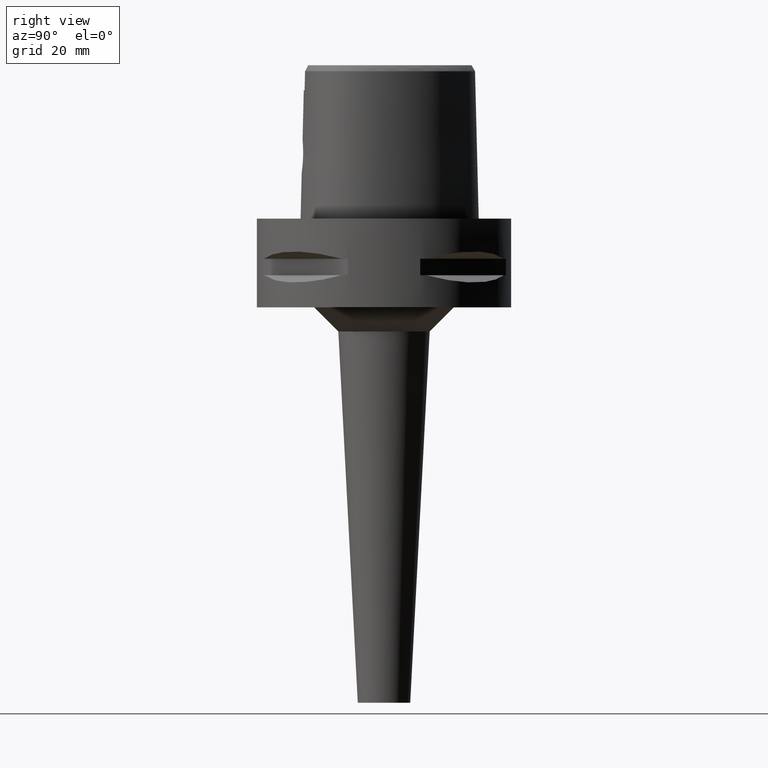
[diagram: clean part render]
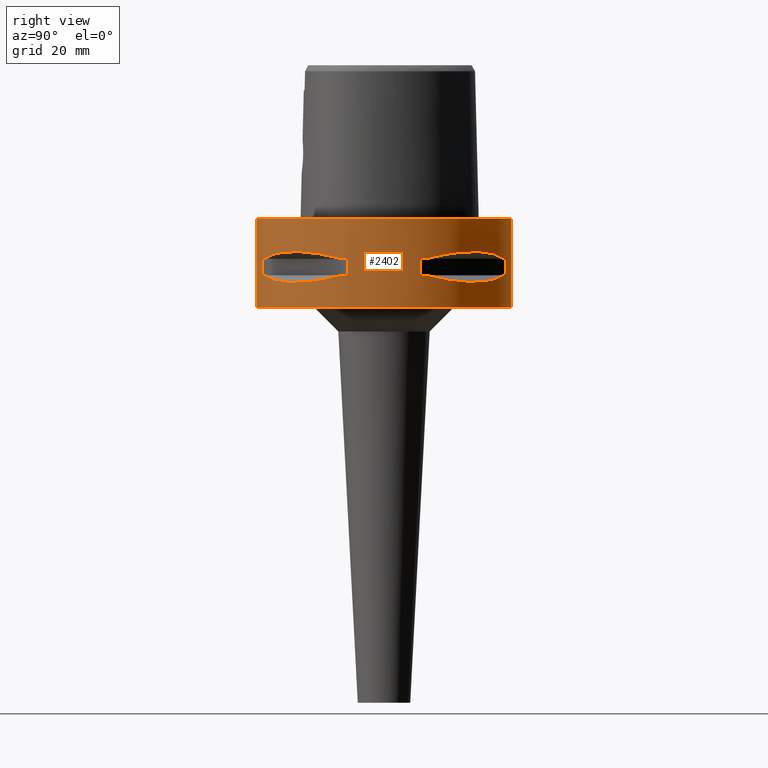
[diagram: same view with one face highlighted and labeled with its STEP entity id]
A machine part, right view. The second image highlights one B-rep face of the part: STEP entity #2402.
In plain terms, the highlighted cylindrical surface (partial cylindrical patch) has radius 31.5 mm, axis along (0, 0, -1).
Its self-contained STEP definition (entity closure, byte-faithful):
#292=CARTESIAN_POINT('',(0.E0,1.298125607096E-14,0.E0));
#293=DIRECTION('',(0.E0,0.E0,-1.E0));
#294=DIRECTION('',(0.E0,1.E0,0.E0));
#295=AXIS2_PLACEMENT_3D('',#292,#293,#294);
#384=DIRECTION('',(0.E0,0.E0,-1.E0));
#385=VECTOR('',#384,2.2E1);
#386=CARTESIAN_POINT('',(0.E0,-3.15E1,0.E0));
#387=LINE('',#386,#385);
#463=DIRECTION('',(0.E0,0.E0,-1.E0));
#464=VECTOR('',#463,2.2E1);
#465=CARTESIAN_POINT('',(0.E0,3.15E1,0.E0));
#466=LINE('',#465,#464);
#470=CARTESIAN_POINT('',(2.971690375018E1,-1.044775724750E1,-9.950000000001E0));
#471=CARTESIAN_POINT('',(2.888151197365E1,-1.282388988809E1,-9.320995176200E0));
#472=CARTESIAN_POINT('',(2.674739463903E1,-1.711282138769E1,-8.441295977077E0));
#473=CARTESIAN_POINT('',(2.244574140438E1,-2.244574140438E1,-8.020283076297E0));
#474=CARTESIAN_POINT('',(1.711282138769E1,-2.674739463903E1,-8.441295977077E0));
#475=CARTESIAN_POINT('',(1.282388988809E1,-2.888151197365E1,-9.320995176200E0));
#476=CARTESIAN_POINT('',(1.044775724750E1,-2.971690375018E1,-9.950000000001E0));
#481=DIRECTION('',(0.E0,0.E0,-1.E0));
#482=VECTOR('',#481,4.1E0);
#483=CARTESIAN_POINT('',(8.981198972017E0,-3.019251670572E1,-9.95E0));
#484=LINE('',#483,#482);
#488=CARTESIAN_POINT('',(1.044775724750E1,-2.971690375018E1,-1.405E1));
#489=CARTESIAN_POINT('',(1.282388988809E1,-2.888151197365E1,-1.467900482380E1));
#490=CARTESIAN_POINT('',(1.711282138769E1,-2.674739463903E1,-1.555870402293E1));
#491=CARTESIAN_POINT('',(2.244574140438E1,-2.244574140438E1,-1.597971692371E1));
#492=CARTESIAN_POINT('',(2.674739463903E1,-1.711282138769E1,-1.555870402293E1));
#493=CARTESIAN_POINT('',(2.888151197365E1,-1.282388988809E1,-1.467900482380E1));
#494=CARTESIAN_POINT('',(2.971690375018E1,-1.044775724750E1,-1.405E1));
#499=DIRECTION('',(0.E0,0.E0,1.E0));
#500=VECTOR('',#499,4.1E0);
#501=CARTESIAN_POINT('',(3.019251670572E1,-8.981198972017E0,-1.405E1));
#502=LINE('',#501,#500);
#506=CARTESIAN_POINT('',(1.044775724750E1,2.971690375018E1,-9.950000000001E0));
#507=CARTESIAN_POINT('',(1.282388988809E1,2.888151197365E1,-9.320995176200E0));
#508=CARTESIAN_POINT('',(1.711282138769E1,2.674739463903E1,-8.441295977077E0));
#509=CARTESIAN_POINT('',(2.244574140438E1,2.244574140438E1,-8.020283076297E0));
#510=CARTESIAN_POINT('',(2.674739463903E1,1.711282138769E1,-8.441295977077E0));
#511=CARTESIAN_POINT('',(2.888151197365E1,1.282388988809E1,-9.320995176200E0));
#512=CARTESIAN_POINT('',(2.971690375018E1,1.044775724750E1,-9.950000000001E0));
#517=DIRECTION('',(0.E0,0.E0,-1.E0));
#518=VECTOR('',#517,4.1E0);
#519=CARTESIAN_POINT('',(3.019251670572E1,8.981198972017E0,-9.95E0));
#520=LINE('',#519,#518);
#524=CARTESIAN_POINT('',(2.971690375018E1,1.044775724750E1,-1.405E1));
#525=CARTESIAN_POINT('',(2.888151197365E1,1.282388988809E1,-1.467900482380E1));
#526=CARTESIAN_POINT('',(2.674739463903E1,1.711282138769E1,-1.555870402293E1));
#527=CARTESIAN_POINT('',(2.244574140438E1,2.244574140438E1,-1.597971692371E1));
#528=CARTESIAN_POINT('',(1.711282138769E1,2.674739463903E1,-1.555870402293E1));
#529=CARTESIAN_POINT('',(1.282388988809E1,2.888151197365E1,-1.467900482380E1));
#530=CARTESIAN_POINT('',(1.044775724750E1,2.971690375018E1,-1.405E1));
#535=DIRECTION('',(0.E0,0.E0,1.E0));
#536=VECTOR('',#535,4.1E0);
#537=CARTESIAN_POINT('',(8.981198972017E0,3.019251670572E1,-1.405E1));
#538=LINE('',#537,#536);
#542=CARTESIAN_POINT('',(0.E0,1.298125607096E-14,-2.2E1));
#543=DIRECTION('',(0.E0,0.E0,1.E0));
#544=DIRECTION('',(0.E0,-1.E0,0.E0));
#545=AXIS2_PLACEMENT_3D('',#542,#543,#544);
#1206=CARTESIAN_POINT('',(0.E0,1.298125607096E-14,-9.95E0));
#1207=DIRECTION('',(0.E0,0.E0,1.E0));
#1208=DIRECTION('',(9.433937698469E-1,-3.316748332541E-1,0.E0));
#1209=AXIS2_PLACEMENT_3D('',#1206,#1207,#1208);
#1214=CARTESIAN_POINT('',(0.E0,1.298125607096E-14,-9.95E0));
#1215=DIRECTION('',(0.E0,0.E0,1.E0));
#1216=DIRECTION('',(2.851174276832E-1,-9.584925938323E-1,0.E0));
#1217=AXIS2_PLACEMENT_3D('',#1214,#1215,#1216);
#1236=CARTESIAN_POINT('',(0.E0,1.298125607096E-14,-1.405E1));
#1237=DIRECTION('',(0.E0,0.E0,-1.E0));
#1238=DIRECTION('',(9.584925938323E-1,-2.851174276832E-1,0.E0));
#1239=AXIS2_PLACEMENT_3D('',#1236,#1237,#1238);
#1244=CARTESIAN_POINT('',(0.E0,1.298125607096E-14,-1.405E1));
#1245=DIRECTION('',(0.E0,0.E0,-1.E0));
#1246=DIRECTION('',(3.316748332541E-1,-9.433937698469E-1,0.E0));
#1247=AXIS2_PLACEMENT_3D('',#1244,#1245,#1246);
#1266=CARTESIAN_POINT('',(0.E0,1.298125607096E-14,-9.95E0));
#1267=DIRECTION('',(0.E0,0.E0,1.E0));
#1268=DIRECTION('',(3.316748332541E-1,9.433937698469E-1,0.E0));
#1269=AXIS2_PLACEMENT_3D('',#1266,#1267,#1268);
#1274=CARTESIAN_POINT('',(0.E0,1.298125607096E-14,-9.95E0));
#1275=DIRECTION('',(0.E0,0.E0,1.E0));
#1276=DIRECTION('',(9.584925938323E-1,2.851174276832E-1,0.E0));
#1277=AXIS2_PLACEMENT_3D('',#1274,#1275,#1276);
#1296=CARTESIAN_POINT('',(0.E0,1.298125607096E-14,-1.405E1));
#1297=DIRECTION('',(0.E0,0.E0,-1.E0));
#1298=DIRECTION('',(2.851174276832E-1,9.584925938323E-1,0.E0));
#1299=AXIS2_PLACEMENT_3D('',#1296,#1297,#1298);
#1304=CARTESIAN_POINT('',(0.E0,1.298125607096E-14,-1.405E1));
#1305=DIRECTION('',(0.E0,0.E0,-1.E0));
#1306=DIRECTION('',(9.433937698469E-1,3.316748332541E-1,0.E0));
#1307=AXIS2_PLACEMENT_3D('',#1304,#1305,#1306);
#1472=CARTESIAN_POINT('',(0.E0,-3.15E1,0.E0));
#1473=CARTESIAN_POINT('',(0.E0,3.15E1,0.E0));
#1474=VERTEX_POINT('',#1472);
#1475=VERTEX_POINT('',#1473);
#1476=CARTESIAN_POINT('',(0.E0,3.15E1,-2.2E1));
#1477=VERTEX_POINT('',#1476);
#1478=CARTESIAN_POINT('',(0.E0,-3.15E1,-2.2E1));
#1479=VERTEX_POINT('',#1478);
#1506=VERTEX_POINT('',#470);
#1507=VERTEX_POINT('',#476);
#1508=CARTESIAN_POINT('',(8.981198972020E0,-3.019251670572E1,-9.95E0));
#1509=VERTEX_POINT('',#1508);
#1510=CARTESIAN_POINT('',(8.981198972017E0,-3.019251670572E1,-1.405E1));
#1511=VERTEX_POINT('',#1510);
#1512=CARTESIAN_POINT('',(1.044775724750E1,-2.971690375018E1,-1.405E1));
#1513=VERTEX_POINT('',#1512);
#1514=VERTEX_POINT('',#494);
#1515=CARTESIAN_POINT('',(3.019251670572E1,-8.981198972020E0,-1.405E1));
#1516=VERTEX_POINT('',#1515);
#1517=CARTESIAN_POINT('',(3.019251670572E1,-8.981198972017E0,-9.95E0));
#1518=VERTEX_POINT('',#1517);
#1519=VERTEX_POINT('',#506);
#1520=VERTEX_POINT('',#512);
#1521=CARTESIAN_POINT('',(3.019251670572E1,8.981198972020E0,-9.95E0));
#1522=VERTEX_POINT('',#1521);
#1523=CARTESIAN_POINT('',(3.019251670572E1,8.981198972017E0,-1.405E1));
#1524=VERTEX_POINT('',#1523);
#1525=CARTESIAN_POINT('',(2.971690375018E1,1.044775724750E1,-1.405E1));
#1526=VERTEX_POINT('',#1525);
#1527=VERTEX_POINT('',#530);
#1528=CARTESIAN_POINT('',(8.981198972020E0,3.019251670572E1,-1.405E1));
#1529=VERTEX_POINT('',#1528);
#1530=CARTESIAN_POINT('',(8.981198972017E0,3.019251670572E1,-9.95E0));
#1531=VERTEX_POINT('',#1530);
#2354=CARTESIAN_POINT('',(0.E0,1.298125607096E-14,6.E0));
#2355=DIRECTION('',(0.E0,0.E0,-1.E0));
#2356=DIRECTION('',(0.E0,-1.E0,0.E0));
#2357=AXIS2_PLACEMENT_3D('',#2354,#2355,#2356);
#2358=CYLINDRICAL_SURFACE('',#2357,3.15E1);
#2359=ORIENTED_EDGE('',*,*,#2308,.T.);
#2361=ORIENTED_EDGE('',*,*,#2360,.F.);
#2362=ORIENTED_EDGE('',*,*,#2311,.F.);
#2363=ORIENTED_EDGE('',*,*,#2293,.F.);
#2364=EDGE_LOOP('',(#2359,#2361,#2362,#2363));
#2365=FACE_OUTER_BOUND('',#2364,.F.);
#2367=ORIENTED_EDGE('',*,*,#2366,.T.);
#2369=ORIENTED_EDGE('',*,*,#2368,.F.);
#2371=ORIENTED_EDGE('',*,*,#2370,.T.);
#2373=ORIENTED_EDGE('',*,*,#2372,.F.);
#2375=ORIENTED_EDGE('',*,*,#2374,.T.);
#2377=ORIENTED_EDGE('',*,*,#2376,.F.);
#2379=ORIENTED_EDGE('',*,*,#2378,.T.);
#2381=ORIENTED_EDGE('',*,*,#2380,.F.);
#2382=EDGE_LOOP('',(#2367,#2369,#2371,#2373,#2375,#2377,#2379,#2381));
#2383=FACE_BOUND('',#2382,.F.);
#2385=ORIENTED_EDGE('',*,*,#2384,.T.);
#2387=ORIENTED_EDGE('',*,*,#2386,.F.);
#2389=ORIENTED_EDGE('',*,*,#2388,.T.);
#2391=ORIENTED_EDGE('',*,*,#2390,.F.);
#2393=ORIENTED_EDGE('',*,*,#2392,.T.);
#2395=ORIENTED_EDGE('',*,*,#2394,.F.);
#2397=ORIENTED_EDGE('',*,*,#2396,.T.);
#2399=ORIENTED_EDGE('',*,*,#2398,.F.);
#2400=EDGE_LOOP('',(#2385,#2387,#2389,#2391,#2393,#2395,#2397,#2399));
#2401=FACE_BOUND('',#2400,.F.);
#296=CIRCLE('',#295,3.15E1);
#477=B_SPLINE_CURVE_WITH_KNOTS('',3,(#470,#471,#472,#473,#474,#475,#476),
.UNSPECIFIED.,.F.,.F.,(4,1,1,1,4),(0.E0,2.5E-1,5.E-1,7.5E-1,1.E0),
.UNSPECIFIED.);
#495=B_SPLINE_CURVE_WITH_KNOTS('',3,(#488,#489,#490,#491,#492,#493,#494),
.UNSPECIFIED.,.F.,.F.,(4,1,1,1,4),(0.E0,2.5E-1,5.E-1,7.5E-1,1.E0),
.UNSPECIFIED.);
#513=B_SPLINE_CURVE_WITH_KNOTS('',3,(#506,#507,#508,#509,#510,#511,#512),
.UNSPECIFIED.,.F.,.F.,(4,1,1,1,4),(0.E0,2.5E-1,5.E-1,7.5E-1,1.E0),
.UNSPECIFIED.);
#531=B_SPLINE_CURVE_WITH_KNOTS('',3,(#524,#525,#526,#527,#528,#529,#530),
.UNSPECIFIED.,.F.,.F.,(4,1,1,1,4),(0.E0,2.5E-1,5.E-1,7.5E-1,1.E0),
.UNSPECIFIED.);
#546=CIRCLE('',#545,3.15E1);
#1210=CIRCLE('',#1209,3.15E1);
#1218=CIRCLE('',#1217,3.15E1);
#1240=CIRCLE('',#1239,3.15E1);
#1248=CIRCLE('',#1247,3.15E1);
#1270=CIRCLE('',#1269,3.15E1);
#1278=CIRCLE('',#1277,3.15E1);
#1300=CIRCLE('',#1299,3.15E1);
#1308=CIRCLE('',#1307,3.15E1);
#2293=EDGE_CURVE('',#1475,#1474,#296,.T.);
#2308=EDGE_CURVE('',#1475,#1477,#466,.T.);
#2311=EDGE_CURVE('',#1474,#1479,#387,.T.);
#2360=EDGE_CURVE('',#1479,#1477,#546,.T.);
#2366=EDGE_CURVE('',#1506,#1507,#477,.T.);
#2368=EDGE_CURVE('',#1509,#1507,#1218,.T.);
#2370=EDGE_CURVE('',#1509,#1511,#484,.T.);
#2372=EDGE_CURVE('',#1513,#1511,#1248,.T.);
#2374=EDGE_CURVE('',#1513,#1514,#495,.T.);
#2376=EDGE_CURVE('',#1516,#1514,#1240,.T.);
#2378=EDGE_CURVE('',#1516,#1518,#502,.T.);
#2380=EDGE_CURVE('',#1506,#1518,#1210,.T.);
#2384=EDGE_CURVE('',#1519,#1520,#513,.T.);
#2386=EDGE_CURVE('',#1522,#1520,#1278,.T.);
#2388=EDGE_CURVE('',#1522,#1524,#520,.T.);
#2390=EDGE_CURVE('',#1526,#1524,#1308,.T.);
#2392=EDGE_CURVE('',#1526,#1527,#531,.T.);
#2394=EDGE_CURVE('',#1529,#1527,#1300,.T.);
#2396=EDGE_CURVE('',#1529,#1531,#538,.T.);
#2398=EDGE_CURVE('',#1519,#1531,#1270,.T.);
#2402=ADVANCED_FACE('',(#2365,#2383,#2401),#2358,.T.);